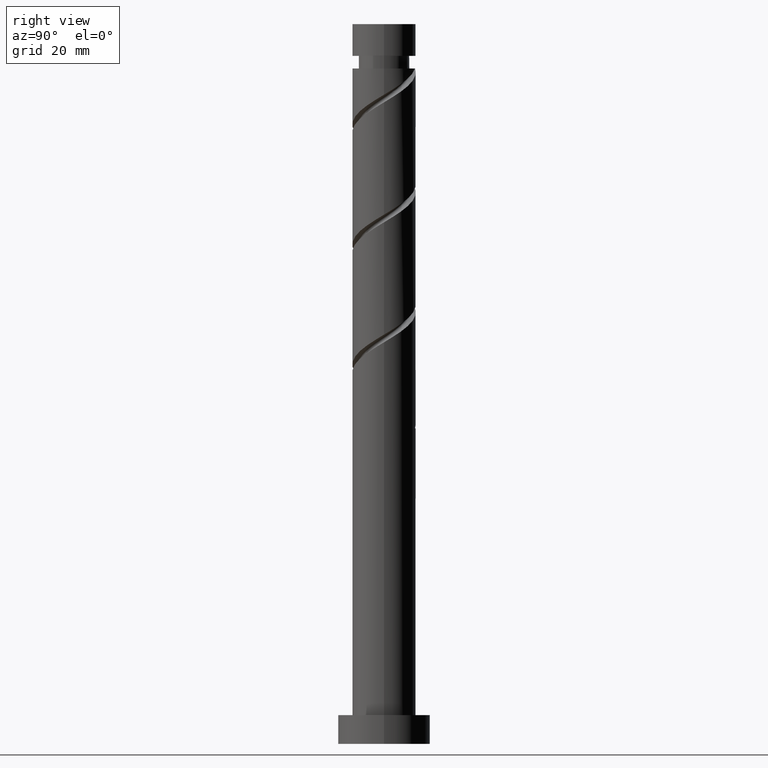
[diagram: clean part render]
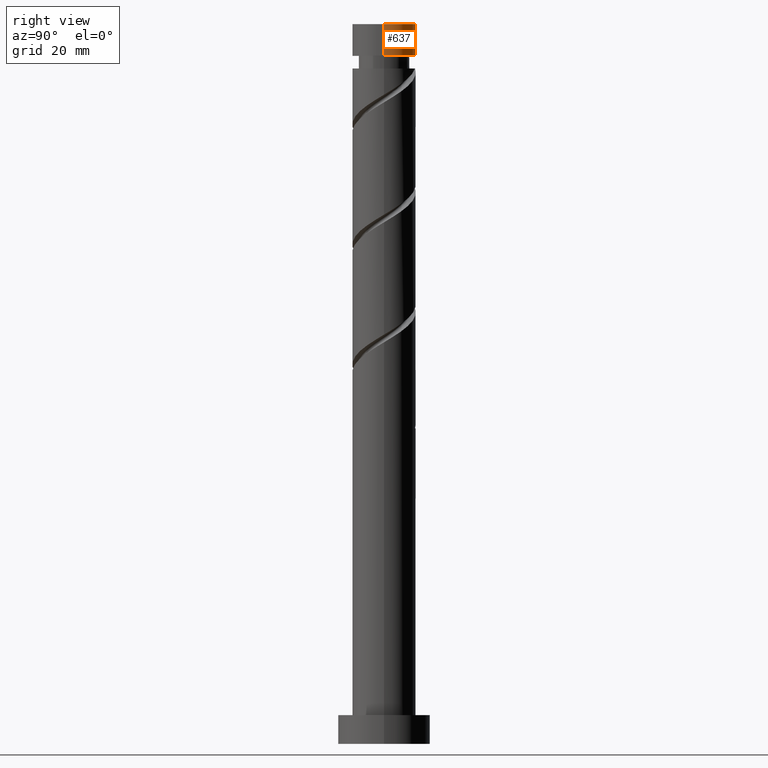
[diagram: same view with one face highlighted and labeled with its STEP entity id]
A machine part, right view. The second image highlights one B-rep face of the part: STEP entity #637.
In plain terms, the highlighted cylindrical surface (edge-blend (fillet) strip) has radius 5.5 mm, axis along (-0, -0, -1).
Its self-contained STEP definition (entity closure, byte-faithful):
#16 = EDGE_LOOP ( 'NONE', ( #1057, #67, #157, #1112 ) ) ;
#53 = CARTESIAN_POINT ( 'NONE',  ( 0.000000000000000000, 0.000000000000000000, 125.0000000000000000 ) ) ;
#67 = ORIENTED_EDGE ( 'NONE', *, *, #941, .T. ) ;
#157 = ORIENTED_EDGE ( 'NONE', *, *, #1055, .F. ) ;
#168 = AXIS2_PLACEMENT_3D ( 'NONE', #598, #735, #1240 ) ;
#285 = DIRECTION ( 'NONE',  ( -0.000000000000000000, -0.000000000000000000, -1.000000000000000000 ) ) ;
#309 = AXIS2_PLACEMENT_3D ( 'NONE', #1160, #721, #1202 ) ;
#344 = CARTESIAN_POINT ( 'NONE',  ( 5.500000000000000000, 6.735557395310442023E-16, 125.0000000000000000 ) ) ;
#358 = CIRCLE ( 'NONE', #309, 5.499999999999996447 ) ;
#376 = CARTESIAN_POINT ( 'NONE',  ( -5.500000000000000000, 0.000000000000000000, 125.0000000000000000 ) ) ;
#523 = VERTEX_POINT ( 'NONE', #1232 ) ;
#525 = DIRECTION ( 'NONE',  ( 0.000000000000000000, 0.000000000000000000, 1.000000000000000000 ) ) ;
#598 = CARTESIAN_POINT ( 'NONE',  ( 0.000000000000000000, 0.000000000000000000, 125.0000000000000000 ) ) ;
#637 = ADVANCED_FACE ( 'NONE', ( #1217 ), #724, .T. ) ;
#721 = DIRECTION ( 'NONE',  ( -0.000000000000000000, -0.000000000000000000, -1.000000000000000000 ) ) ;
#724 = CYLINDRICAL_SURFACE ( 'NONE', #168, 5.500000000000000000 ) ;
#735 = DIRECTION ( 'NONE',  ( -0.000000000000000000, -0.000000000000000000, -1.000000000000000000 ) ) ;
#755 = AXIS2_PLACEMENT_3D ( 'NONE', #53, #525, #1004 ) ;
#773 = CARTESIAN_POINT ( 'NONE',  ( 5.499999999999996447, 6.735557395310440051E-16, 119.4876191650925250 ) ) ;
#797 = LINE ( 'NONE', #344, #1293 ) ;
#834 = DIRECTION ( 'NONE',  ( -0.000000000000000000, -0.000000000000000000, -1.000000000000000000 ) ) ;
#842 = CARTESIAN_POINT ( 'NONE',  ( -5.499999999999996447, 0.000000000000000000, 119.4876191650925250 ) ) ;
#862 = LINE ( 'NONE', #376, #1535 ) ;
#911 = CARTESIAN_POINT ( 'NONE',  ( -5.500000000000000000, 0.000000000000000000, 125.0000000000000000 ) ) ;
#916 = EDGE_CURVE ( 'NONE', #523, #1082, #1318, .T. ) ;
#930 = VERTEX_POINT ( 'NONE', #773 ) ;
#941 = EDGE_CURVE ( 'NONE', #523, #930, #797, .T. ) ;
#1004 = DIRECTION ( 'NONE',  ( 1.000000000000000000, 0.000000000000000000, 0.000000000000000000 ) ) ;
#1055 = EDGE_CURVE ( 'NONE', #1450, #930, #358, .T. ) ;
#1057 = ORIENTED_EDGE ( 'NONE', *, *, #916, .F. ) ;
#1082 = VERTEX_POINT ( 'NONE', #911 ) ;
#1112 = ORIENTED_EDGE ( 'NONE', *, *, #1215, .F. ) ;
#1160 = CARTESIAN_POINT ( 'NONE',  ( 0.000000000000000000, 0.000000000000000000, 119.4876191650925250 ) ) ;
#1202 = DIRECTION ( 'NONE',  ( -1.000000000000000000, 0.000000000000000000, 0.000000000000000000 ) ) ;
#1215 = EDGE_CURVE ( 'NONE', #1082, #1450, #862, .T. ) ;
#1217 = FACE_OUTER_BOUND ( 'NONE', #16, .T. ) ;
#1232 = CARTESIAN_POINT ( 'NONE',  ( 5.500000000000000000, 6.735557395310442023E-16, 125.0000000000000000 ) ) ;
#1240 = DIRECTION ( 'NONE',  ( -1.000000000000000000, 0.000000000000000000, 0.000000000000000000 ) ) ;
#1293 = VECTOR ( 'NONE', #834, 1000.000000000000000 ) ;
#1318 = CIRCLE ( 'NONE', #755, 5.500000000000000000 ) ;
#1450 = VERTEX_POINT ( 'NONE', #842 ) ;
#1535 = VECTOR ( 'NONE', #285, 1000.000000000000000 ) ;